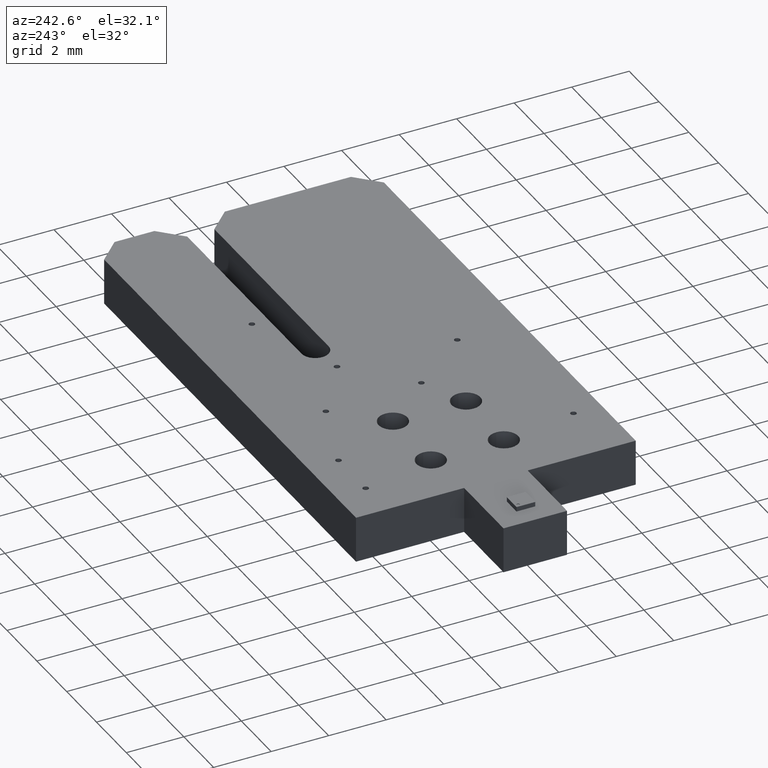
[diagram: clean part render]
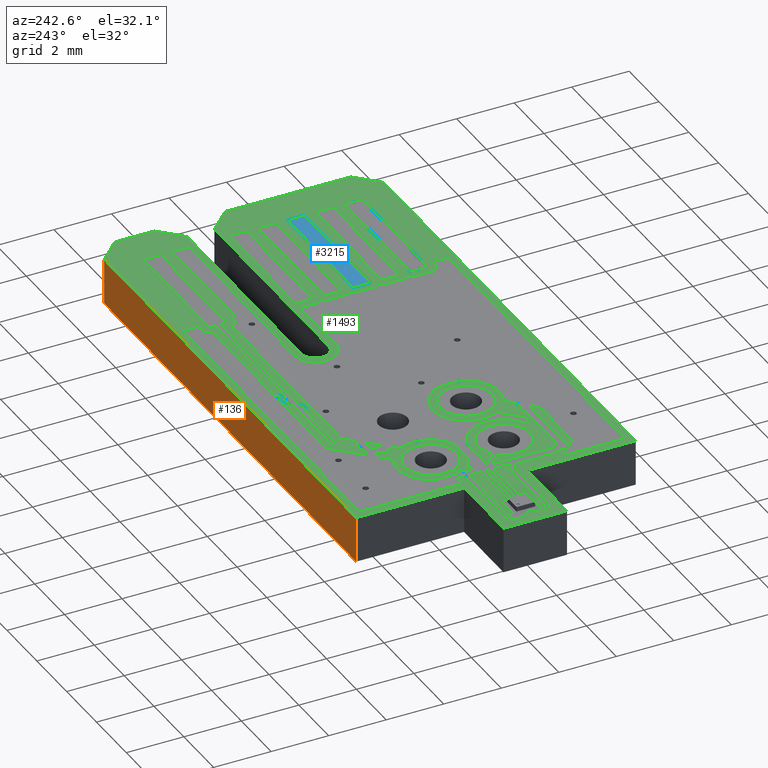
[diagram: same view with three faces highlighted in distinct colors, each labeled with its STEP entity id]
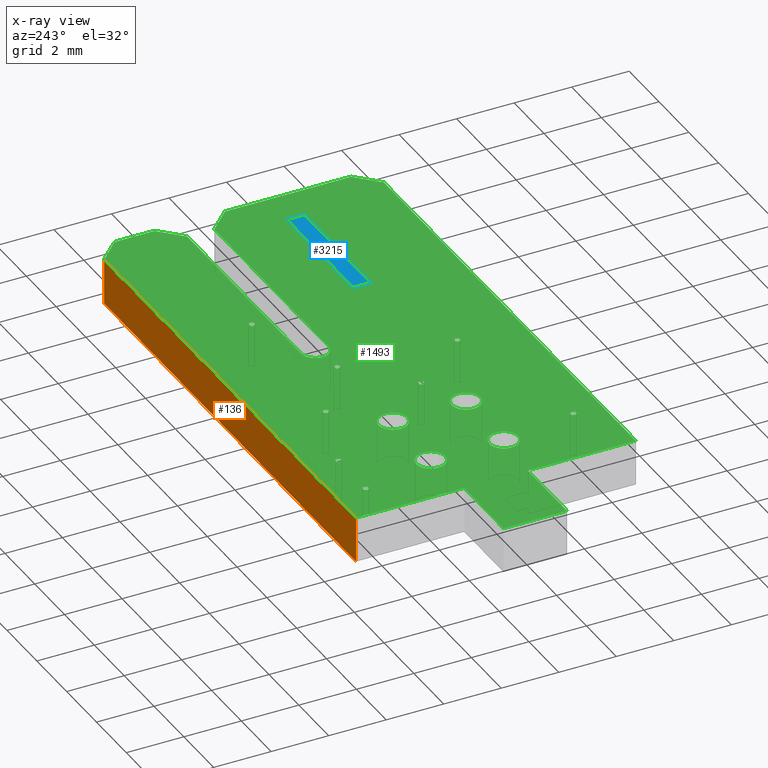
[diagram: x-ray of the same camera — body ghosted, the three highlighted faces saturated]
A machine part, auxiliary view with three faces highlighted in distinct colors.
The next image is the same camera in x-ray (body ghosted, the three faces saturated) — at least one of them is partly hidden behind the body in this view.
Their STEP definitions:

[orange] entity #136 — the highlighted planar face has unit normal (0, 1, 0).
#111 = VERTEX_POINT('',#112);
#112 = CARTESIAN_POINT('',(4.076708153416,4.864109728219,1.600025400051)
  );
#118 = EDGE_CURVE('',#119,#111,#121,.T.);
#119 = VERTEX_POINT('',#120);
#120 = CARTESIAN_POINT('',(4.076708153416,4.864109728219,0.));
#121 = LINE('',#122,#123);
#122 = CARTESIAN_POINT('',(4.076708153416,4.864109728219,0.));
#123 = VECTOR('',#124,1.);
#124 = DIRECTION('',(0.,0.,1.));
#136 = ADVANCED_FACE('',(#137),#162,.T.);
#137 = FACE_BOUND('',#138,.T.);
#138 = EDGE_LOOP('',(#139,#140,#148,#156));
#139 = ORIENTED_EDGE('',*,*,#118,.T.);
#140 = ORIENTED_EDGE('',*,*,#141,.T.);
#141 = EDGE_CURVE('',#111,#142,#144,.T.);
#142 = VERTEX_POINT('',#143);
#143 = CARTESIAN_POINT('',(20.975181438121,4.864109728219,1.600025400051
    ));
#144 = LINE('',#145,#146);
#145 = CARTESIAN_POINT('',(4.076708153416,4.864109728219,1.600025400051)
  );
#146 = VECTOR('',#147,1.);
#147 = DIRECTION('',(1.,0.,0.));
#148 = ORIENTED_EDGE('',*,*,#149,.F.);
#149 = EDGE_CURVE('',#150,#142,#152,.T.);
#150 = VERTEX_POINT('',#151);
#151 = CARTESIAN_POINT('',(20.975181438121,4.864109728219,0.));
#152 = LINE('',#153,#154);
#153 = CARTESIAN_POINT('',(20.975181438121,4.864109728219,0.));
#154 = VECTOR('',#155,1.);
#155 = DIRECTION('',(0.,0.,1.));
#156 = ORIENTED_EDGE('',*,*,#157,.F.);
#157 = EDGE_CURVE('',#119,#150,#158,.T.);
#158 = LINE('',#159,#160);
#159 = CARTESIAN_POINT('',(4.076708153416,4.864109728219,0.));
#160 = VECTOR('',#161,1.);
#161 = DIRECTION('',(1.,0.,0.));
#162 = PLANE('',#163);
#163 = AXIS2_PLACEMENT_3D('',#164,#165,#166);
#164 = CARTESIAN_POINT('',(4.076708153416,4.864109728219,0.));
#165 = DIRECTION('',(0.,1.,0.));
#166 = DIRECTION('',(1.,0.,0.));

[blue] entity #3215 — the highlighted planar face has unit normal (-0, -0, -1).
#3215 = ADVANCED_FACE('',(#3216),#3250,.T.);
#3216 = FACE_BOUND('',#3217,.T.);
#3217 = EDGE_LOOP('',(#3218,#3228,#3236,#3244));
#3218 = ORIENTED_EDGE('',*,*,#3219,.T.);
#3219 = EDGE_CURVE('',#3220,#3222,#3224,.T.);
#3220 = VERTEX_POINT('',#3221);
#3221 = CARTESIAN_POINT('',(20.408940817882,-1.196342392685,0.));
#3222 = VERTEX_POINT('',#3223);
#3223 = CARTESIAN_POINT('',(20.408940817882,-1.805943611887,0.));
#3224 = LINE('',#3225,#3226);
#3225 = CARTESIAN_POINT('',(20.408940817882,-1.196342392685,0.));
#3226 = VECTOR('',#3227,1.);
#3227 = DIRECTION('',(0.,-1.,0.));
#3228 = ORIENTED_EDGE('',*,*,#3229,.T.);
#3229 = EDGE_CURVE('',#3222,#3230,#3232,.T.);
#3230 = VERTEX_POINT('',#3231);
#3231 = CARTESIAN_POINT('',(15.963931927864,-1.805943611887,0.));
#3232 = LINE('',#3233,#3234);
#3233 = CARTESIAN_POINT('',(20.408940817882,-1.805943611887,0.));
#3234 = VECTOR('',#3235,1.);
#3235 = DIRECTION('',(-1.,9.990738395313E-17,0.));
#3236 = ORIENTED_EDGE('',*,*,#3237,.T.);
#3237 = EDGE_CURVE('',#3230,#3238,#3240,.T.);
#3238 = VERTEX_POINT('',#3239);
#3239 = CARTESIAN_POINT('',(15.963931927864,-1.196342392685,0.));
#3240 = LINE('',#3241,#3242);
#3241 = CARTESIAN_POINT('',(15.963931927864,-1.805943611887,0.));
#3242 = VECTOR('',#3243,1.);
#3243 = DIRECTION('',(0.,1.,0.));
#3244 = ORIENTED_EDGE('',*,*,#3245,.T.);
#3245 = EDGE_CURVE('',#3238,#3220,#3246,.T.);
#3246 = LINE('',#3247,#3248);
#3247 = CARTESIAN_POINT('',(15.963931927864,-1.196342392685,0.));
#3248 = VECTOR('',#3249,1.);
#3249 = DIRECTION('',(1.,-9.990738395313E-17,0.));
#3250 = PLANE('',#3251);
#3251 = AXIS2_PLACEMENT_3D('',#3252,#3253,#3254);
#3252 = CARTESIAN_POINT('',(18.186436372873,-1.501143002286,0.));
#3253 = DIRECTION('',(-0.,-0.,-1.));
#3254 = DIRECTION('',(-1.,0.,0.));

[green] entity #1493 — the highlighted planar face has unit normal (-0, -0, -1).
#70 = VERTEX_POINT('',#71);
#71 = CARTESIAN_POINT('',(4.064008128016,1.104902209804,1.600025400051)
  );
#77 = EDGE_CURVE('',#70,#78,#80,.T.);
#78 = VERTEX_POINT('',#79);
#79 = CARTESIAN_POINT('',(4.076708153416,1.117602235204,1.600025400051)
  );
#80 = CIRCLE('',#81,1.270002540005E-02);
#81 = AXIS2_PLACEMENT_3D('',#82,#83,#84);
#82 = CARTESIAN_POINT('',(4.064008128016,1.117602235204,1.600025400051)
  );
#83 = DIRECTION('',(0.,0.,1.));
#84 = DIRECTION('',(8.789254920238E-15,-1.,0.));
#110 = EDGE_CURVE('',#78,#111,#113,.T.);
#111 = VERTEX_POINT('',#112);
#112 = CARTESIAN_POINT('',(4.076708153416,4.864109728219,1.600025400051)
  );
#113 = LINE('',#114,#115);
#114 = CARTESIAN_POINT('',(4.076708153416,1.117602235204,1.600025400051)
  );
#115 = VECTOR('',#116,1.);
#116 = DIRECTION('',(0.,1.,0.));
#141 = EDGE_CURVE('',#111,#142,#144,.T.);
#142 = VERTEX_POINT('',#143);
#143 = CARTESIAN_POINT('',(20.975181438121,4.864109728219,1.600025400051
    ));
#144 = LINE('',#145,#146);
#145 = CARTESIAN_POINT('',(4.076708153416,4.864109728219,1.600025400051)
  );
#146 = VECTOR('',#147,1.);
#147 = DIRECTION('',(1.,0.,0.));
#172 = EDGE_CURVE('',#142,#173,#175,.T.);
#173 = VERTEX_POINT('',#174);
#174 = CARTESIAN_POINT('',(21.729743459487,4.109547706853,1.600025400051
    ));
#175 = LINE('',#176,#177);
#176 = CARTESIAN_POINT('',(20.975181438121,4.864109728219,1.600025400051
    ));
#177 = VECTOR('',#178,1.);
#178 = DIRECTION('',(0.707106781187,-0.707106781187,0.));
#203 = EDGE_CURVE('',#173,#204,#206,.T.);
#204 = VERTEX_POINT('',#205);
#205 = CARTESIAN_POINT('',(21.729743459487,2.725605963454,1.600025400051
    ));
#206 = LINE('',#207,#208);
#207 = CARTESIAN_POINT('',(21.729743459487,4.109547706853,1.600025400051
    ));
#208 = VECTOR('',#209,1.);
#209 = DIRECTION('',(0.,-1.,0.));
#234 = EDGE_CURVE('',#204,#235,#237,.T.);
#235 = VERTEX_POINT('',#236);
#236 = CARTESIAN_POINT('',(20.975181438121,1.971043942088,1.600025400051
    ));
#237 = LINE('',#238,#239);
#238 = CARTESIAN_POINT('',(21.729743459487,2.725605963454,1.600025400051
    ));
#239 = VECTOR('',#240,1.);
#240 = DIRECTION('',(-0.707106781187,-0.707106781187,0.));
#265 = EDGE_CURVE('',#235,#266,#268,.T.);
#266 = VERTEX_POINT('',#267);
#267 = CARTESIAN_POINT('',(13.309626619253,1.971043942088,1.600025400051
    ));
#268 = LINE('',#269,#270);
#269 = CARTESIAN_POINT('',(20.975181438121,1.971043942088,1.600025400051
    ));
#270 = VECTOR('',#271,1.);
#271 = DIRECTION('',(-1.,1.737992436335E-16,0.));
#296 = EDGE_CURVE('',#266,#297,#299,.T.);
#297 = VERTEX_POINT('',#298);
#298 = CARTESIAN_POINT('',(13.309626619253,1.031242062484,1.600025400051
    ));
#299 = CIRCLE('',#300,0.469900939802);
#300 = AXIS2_PLACEMENT_3D('',#301,#302,#303);
#301 = CARTESIAN_POINT('',(13.309626619253,1.501143002286,1.600025400051
    ));
#302 = DIRECTION('',(0.,0.,1.));
#303 = DIRECTION('',(-1.110223024625E-16,1.,0.));
#329 = EDGE_CURVE('',#297,#330,#332,.T.);
#330 = VERTEX_POINT('',#331);
#331 = CARTESIAN_POINT('',(20.975181438121,1.031242062484,1.600025400051
    ));
#332 = LINE('',#333,#334);
#333 = CARTESIAN_POINT('',(13.309626619253,1.031242062484,1.600025400051
    ));
#334 = VECTOR('',#335,1.);
#335 = DIRECTION('',(1.,-8.689962181674E-17,0.));
#360 = EDGE_CURVE('',#330,#361,#363,.T.);
#361 = VERTEX_POINT('',#362);
#362 = CARTESIAN_POINT('',(21.729743459487,0.276680041118,1.600025400051
    ));
#363 = LINE('',#364,#365);
#364 = CARTESIAN_POINT('',(20.975181438121,1.031242062484,1.600025400051
    ));
#365 = VECTOR('',#366,1.);
#366 = DIRECTION('',(0.707106781187,-0.707106781187,0.));
#391 = EDGE_CURVE('',#361,#392,#394,.T.);
#392 = VERTEX_POINT('',#393);
#393 = CARTESIAN_POINT('',(21.729743459487,-4.109547706853,
    1.600025400051));
#394 = LINE('',#395,#396);
#395 = CARTESIAN_POINT('',(21.729743459487,0.276680041118,1.600025400051
    ));
#396 = VECTOR('',#397,1.);
#397 = DIRECTION('',(0.,-1.,0.));
#422 = EDGE_CURVE('',#392,#423,#425,.T.);
#423 = VERTEX_POINT('',#424);
#424 = CARTESIAN_POINT('',(20.975181438121,-4.864109728219,
    1.600025400051));
#425 = LINE('',#426,#427);
#426 = CARTESIAN_POINT('',(21.729743459487,-4.109547706853,
    1.600025400051));
#427 = VECTOR('',#428,1.);
#428 = DIRECTION('',(-0.707106781187,-0.707106781187,0.));
#453 = EDGE_CURVE('',#423,#454,#456,.T.);
#454 = VERTEX_POINT('',#455);
#455 = CARTESIAN_POINT('',(4.076708153416,-4.864109728219,1.600025400051
    ));
#456 = LINE('',#457,#458);
#457 = CARTESIAN_POINT('',(20.975181438121,-4.864109728219,
    1.600025400051));
#458 = VECTOR('',#459,1.);
#459 = DIRECTION('',(-1.,0.,0.));
#484 = EDGE_CURVE('',#454,#485,#487,.T.);
#485 = VERTEX_POINT('',#486);
#486 = CARTESIAN_POINT('',(4.076708153416,-1.117602235204,1.600025400051
    ));
#487 = LINE('',#488,#489);
#488 = CARTESIAN_POINT('',(4.076708153416,-4.864109728219,1.600025400051
    ));
#489 = VECTOR('',#490,1.);
#490 = DIRECTION('',(0.,1.,0.));
#515 = EDGE_CURVE('',#485,#516,#518,.T.);
#516 = VERTEX_POINT('',#517);
#517 = CARTESIAN_POINT('',(4.064008128016,-1.104902209804,1.600025400051
    ));
#518 = CIRCLE('',#519,1.270002540005E-02);
#519 = AXIS2_PLACEMENT_3D('',#520,#521,#522);
#520 = CARTESIAN_POINT('',(4.064008128016,-1.117602235204,1.600025400051
    ));
#521 = DIRECTION('',(0.,-0.,1.));
#522 = DIRECTION('',(1.,-8.692669701335E-15,-0.));
#548 = EDGE_CURVE('',#516,#549,#551,.T.);
#549 = VERTEX_POINT('',#550);
#550 = CARTESIAN_POINT('',(1.435102870206,-1.104902209804,1.600025400051
    ));
#551 = LINE('',#552,#553);
#552 = CARTESIAN_POINT('',(4.064008128016,-1.104902209804,1.600025400051
    ));
#553 = VECTOR('',#554,1.);
#554 = DIRECTION('',(-1.,0.,0.));
#579 = EDGE_CURVE('',#549,#580,#582,.T.);
#580 = VERTEX_POINT('',#581);
#581 = CARTESIAN_POINT('',(1.435102870206,1.104902209804,1.600025400051)
  );
#582 = LINE('',#583,#584);
#583 = CARTESIAN_POINT('',(1.435102870206,-1.104902209804,1.600025400051
    ));
#584 = VECTOR('',#585,1.);
#585 = DIRECTION('',(0.,1.,0.));
#610 = EDGE_CURVE('',#580,#70,#611,.T.);
#611 = LINE('',#612,#613);
#612 = CARTESIAN_POINT('',(1.435102870206,1.104902209804,1.600025400051)
  );
#613 = VECTOR('',#614,1.);
#614 = DIRECTION('',(1.,0.,0.));
#634 = VERTEX_POINT('',#635);
#635 = CARTESIAN_POINT('',(5.562611125222,3.810007620015,1.600025400051)
  );
#641 = EDGE_CURVE('',#634,#642,#644,.T.);
#642 = VERTEX_POINT('',#643);
#643 = CARTESIAN_POINT('',(5.359410718821,3.810007620015,1.600025400051)
  );
#644 = CIRCLE('',#645,0.1016002032);
#645 = AXIS2_PLACEMENT_3D('',#646,#647,#648);
#646 = CARTESIAN_POINT('',(5.461010922022,3.810007620015,1.600025400051)
  );
#647 = DIRECTION('',(0.,0.,1.));
#648 = DIRECTION('',(1.,1.110223024625E-16,-0.));
#674 = EDGE_CURVE('',#642,#634,#675,.T.);
#675 = CIRCLE('',#676,0.1016002032);
#676 = AXIS2_PLACEMENT_3D('',#677,#678,#679);
#677 = CARTESIAN_POINT('',(5.461010922022,3.810007620015,1.600025400051)
  );
#678 = DIRECTION('',(0.,0.,1.));
#679 = DIRECTION('',(-1.,-1.110223024625E-16,0.));
#700 = VERTEX_POINT('',#701);
#701 = CARTESIAN_POINT('',(6.494411988824,-1.270002540005,1.600025400051
    ));
#707 = EDGE_CURVE('',#700,#708,#710,.T.);
#708 = VERTEX_POINT('',#709);
#709 = CARTESIAN_POINT('',(5.494411988824,-1.270002540005,1.600025400051
    ));
#710 = CIRCLE('',#711,0.5);
#711 = AXIS2_PLACEMENT_3D('',#712,#713,#714);
#712 = CARTESIAN_POINT('',(5.994411988824,-1.270002540005,1.600025400051
    ));
#713 = DIRECTION('',(0.,0.,1.));
#714 = DIRECTION('',(1.,1.110223024625E-16,-0.));
#740 = EDGE_CURVE('',#708,#700,#741,.T.);
#741 = CIRCLE('',#742,0.5);
#742 = AXIS2_PLACEMENT_3D('',#743,#744,#745);
#743 = CARTESIAN_POINT('',(5.994411988824,-1.270002540005,1.600025400051
    ));
#744 = DIRECTION('',(0.,0.,1.));
#745 = DIRECTION('',(-1.,-1.110223024625E-16,0.));
#766 = VERTEX_POINT('',#767);
#767 = CARTESIAN_POINT('',(6.494411988824,1.270002540005,1.600025400051)
  );
#773 = EDGE_CURVE('',#766,#774,#776,.T.);
#774 = VERTEX_POINT('',#775);
#775 = CARTESIAN_POINT('',(5.494411988824,1.270002540005,1.600025400051)
  );
#776 = CIRCLE('',#777,0.5);
#777 = AXIS2_PLACEMENT_3D('',#778,#779,#780);
#778 = CARTESIAN_POINT('',(5.994411988824,1.270002540005,1.600025400051)
  );
#779 = DIRECTION('',(0.,0.,1.));
#780 = DIRECTION('',(1.,1.110223024625E-16,-0.));
#806 = EDGE_CURVE('',#774,#766,#807,.T.);
#807 = CIRCLE('',#808,0.5);
#808 = AXIS2_PLACEMENT_3D('',#809,#810,#811);
#809 = CARTESIAN_POINT('',(5.994411988824,1.270002540005,1.600025400051)
  );
#810 = DIRECTION('',(0.,0.,1.));
#811 = DIRECTION('',(-1.,-1.110223024625E-16,0.));
#832 = VERTEX_POINT('',#833);
#833 = CARTESIAN_POINT('',(6.477012954026,-3.886207772416,1.600025400051
    ));
#839 = EDGE_CURVE('',#832,#840,#842,.T.);
#840 = VERTEX_POINT('',#841);
#841 = CARTESIAN_POINT('',(6.273812547625,-3.886207772416,1.600025400051
    ));
#842 = CIRCLE('',#843,0.1016002032);
#843 = AXIS2_PLACEMENT_3D('',#844,#845,#846);
#844 = CARTESIAN_POINT('',(6.375412750826,-3.886207772416,1.600025400051
    ));
#845 = DIRECTION('',(0.,0.,1.));
#846 = DIRECTION('',(1.,1.110223024625E-16,-0.));
#872 = EDGE_CURVE('',#840,#832,#873,.T.);
#873 = CIRCLE('',#874,0.1016002032);
#874 = AXIS2_PLACEMENT_3D('',#875,#876,#877);
#875 = CARTESIAN_POINT('',(6.375412750826,-3.886207772416,1.600025400051
    ));
#876 = DIRECTION('',(0.,0.,1.));
#877 = DIRECTION('',(-1.,-1.110223024625E-16,0.));
#898 = VERTEX_POINT('',#899);
#899 = CARTESIAN_POINT('',(7.388516637033,3.810007620015,1.600025400051)
  );
#905 = EDGE_CURVE('',#898,#906,#908,.T.);
#906 = VERTEX_POINT('',#907);
#907 = CARTESIAN_POINT('',(7.185316230632,3.810007620015,1.600025400051)
  );
#908 = CIRCLE('',#909,0.1016002032);
#909 = AXIS2_PLACEMENT_3D('',#910,#911,#912);
#910 = CARTESIAN_POINT('',(7.286916433833,3.810007620015,1.600025400051)
  );
#911 = DIRECTION('',(0.,0.,1.));
#912 = DIRECTION('',(1.,1.110223024625E-16,-0.));
#938 = EDGE_CURVE('',#906,#898,#939,.T.);
#939 = CIRCLE('',#940,0.1016002032);
#940 = AXIS2_PLACEMENT_3D('',#941,#942,#943);
#941 = CARTESIAN_POINT('',(7.286916433833,3.810007620015,1.600025400051)
  );
#942 = DIRECTION('',(0.,0.,1.));
#943 = DIRECTION('',(-1.,-1.110223024625E-16,0.));
#964 = VERTEX_POINT('',#965);
#965 = CARTESIAN_POINT('',(9.034417068834,-1.270002540005,1.600025400051
    ));
#971 = EDGE_CURVE('',#964,#972,#974,.T.);
#972 = VERTEX_POINT('',#973);
#973 = CARTESIAN_POINT('',(8.034417068834,-1.270002540005,1.600025400051
    ));
#974 = CIRCLE('',#975,0.5);
#975 = AXIS2_PLACEMENT_3D('',#976,#977,#978);
#976 = CARTESIAN_POINT('',(8.534417068834,-1.270002540005,1.600025400051
    ));
#977 = DIRECTION('',(0.,0.,1.));
#978 = DIRECTION('',(1.,1.110223024625E-16,-0.));
#1004 = EDGE_CURVE('',#972,#964,#1005,.T.);
#1005 = CIRCLE('',#1006,0.5);
#1006 = AXIS2_PLACEMENT_3D('',#1007,#1008,#1009);
#1007 = CARTESIAN_POINT('',(8.534417068834,-1.270002540005,
    1.600025400051));
#1008 = DIRECTION('',(0.,0.,1.));
#1009 = DIRECTION('',(-1.,-1.110223024625E-16,0.));
#1030 = VERTEX_POINT('',#1031);
#1031 = CARTESIAN_POINT('',(9.034417068834,1.270002540005,1.600025400051
    ));
#1037 = EDGE_CURVE('',#1030,#1038,#1040,.T.);
#1038 = VERTEX_POINT('',#1039);
#1039 = CARTESIAN_POINT('',(8.034417068834,1.270002540005,1.600025400051
    ));
#1040 = CIRCLE('',#1041,0.5);
#1041 = AXIS2_PLACEMENT_3D('',#1042,#1043,#1044);
#1042 = CARTESIAN_POINT('',(8.534417068834,1.270002540005,1.600025400051
    ));
#1043 = DIRECTION('',(0.,0.,1.));
#1044 = DIRECTION('',(1.,1.110223024625E-16,-0.));
#1070 = EDGE_CURVE('',#1038,#1030,#1071,.T.);
#1071 = CIRCLE('',#1072,0.5);
#1072 = AXIS2_PLACEMENT_3D('',#1073,#1074,#1075);
#1073 = CARTESIAN_POINT('',(8.534417068834,1.270002540005,1.600025400051
    ));
#1074 = DIRECTION('',(0.,0.,1.));
#1075 = DIRECTION('',(-1.,-1.110223024625E-16,0.));
#1096 = VERTEX_POINT('',#1097);
#1097 = CARTESIAN_POINT('',(10.096898653797,2.844805689611,
    1.600025400051));
#1103 = EDGE_CURVE('',#1096,#1104,#1106,.T.);
#1104 = VERTEX_POINT('',#1105);
#1105 = CARTESIAN_POINT('',(9.893698247396,2.844805689611,1.600025400051
    ));
#1106 = CIRCLE('',#1107,0.1016002032);
#1107 = AXIS2_PLACEMENT_3D('',#1108,#1109,#1110);
#1108 = CARTESIAN_POINT('',(9.995298450597,2.844805689611,1.600025400051
    ));
#1109 = DIRECTION('',(0.,0.,1.));
#1110 = DIRECTION('',(1.,1.110223024625E-16,-0.));
#1136 = EDGE_CURVE('',#1104,#1096,#1137,.T.);
#1137 = CIRCLE('',#1138,0.1016002032);
#1138 = AXIS2_PLACEMENT_3D('',#1139,#1140,#1141);
#1139 = CARTESIAN_POINT('',(9.995298450597,2.844805689611,1.600025400051
    ));
#1140 = DIRECTION('',(0.,0.,1.));
#1141 = DIRECTION('',(-1.,-1.110223024625E-16,0.));
#1162 = VERTEX_POINT('',#1163);
#1163 = CARTESIAN_POINT('',(10.210820421641,-0.533401066802,
    1.600025400051));
#1169 = EDGE_CURVE('',#1162,#1170,#1172,.T.);
#1170 = VERTEX_POINT('',#1171);
#1171 = CARTESIAN_POINT('',(10.00762001524,-0.533401066802,
    1.600025400051));
#1172 = CIRCLE('',#1173,0.1016002032);
#1173 = AXIS2_PLACEMENT_3D('',#1174,#1175,#1176);
#1174 = CARTESIAN_POINT('',(10.10922021844,-0.533401066802,
    1.600025400051));
#1175 = DIRECTION('',(0.,0.,1.));
#1176 = DIRECTION('',(1.,1.110223024625E-16,-0.));
#1202 = EDGE_CURVE('',#1170,#1162,#1203,.T.);
#1203 = CIRCLE('',#1204,0.1016002032);
#1204 = AXIS2_PLACEMENT_3D('',#1205,#1206,#1207);
#1205 = CARTESIAN_POINT('',(10.10922021844,-0.533401066802,
    1.600025400051));
#1206 = DIRECTION('',(0.,0.,1.));
#1207 = DIRECTION('',(-1.,-1.110223024625E-16,0.));
#1228 = VERTEX_POINT('',#1229);
#1229 = CARTESIAN_POINT('',(11.912623825248,-2.667005334011,
    1.600025400051));
#1235 = EDGE_CURVE('',#1228,#1236,#1238,.T.);
#1236 = VERTEX_POINT('',#1237);
#1237 = CARTESIAN_POINT('',(11.709423418847,-2.667005334011,
    1.600025400051));
#1238 = CIRCLE('',#1239,0.1016002032);
#1239 = AXIS2_PLACEMENT_3D('',#1240,#1241,#1242);
#1240 = CARTESIAN_POINT('',(11.811023622047,-2.667005334011,
    1.600025400051));
#1241 = DIRECTION('',(0.,0.,1.));
#1242 = DIRECTION('',(1.,1.110223024625E-16,-0.));
#1268 = EDGE_CURVE('',#1236,#1228,#1269,.T.);
#1269 = CIRCLE('',#1270,0.1016002032);
#1270 = AXIS2_PLACEMENT_3D('',#1271,#1272,#1273);
#1271 = CARTESIAN_POINT('',(11.811023622047,-2.667005334011,
    1.600025400051));
#1272 = DIRECTION('',(0.,0.,1.));
#1273 = DIRECTION('',(-1.,-1.110223024625E-16,0.));
#1294 = VERTEX_POINT('',#1295);
#1295 = CARTESIAN_POINT('',(12.242824485649,1.346202692405,
    1.600025400051));
#1301 = EDGE_CURVE('',#1294,#1302,#1304,.T.);
#1302 = VERTEX_POINT('',#1303);
#1303 = CARTESIAN_POINT('',(12.039624079248,1.346202692405,
    1.600025400051));
#1304 = CIRCLE('',#1305,0.1016002032);
#1305 = AXIS2_PLACEMENT_3D('',#1306,#1307,#1308);
#1306 = CARTESIAN_POINT('',(12.141224282449,1.346202692405,
    1.600025400051));
#1307 = DIRECTION('',(0.,0.,1.));
#1308 = DIRECTION('',(1.,1.110223024625E-16,-0.));
#1334 = EDGE_CURVE('',#1302,#1294,#1335,.T.);
#1335 = CIRCLE('',#1336,0.1016002032);
#1336 = AXIS2_PLACEMENT_3D('',#1337,#1338,#1339);
#1337 = CARTESIAN_POINT('',(12.141224282449,1.346202692405,
    1.600025400051));
#1338 = DIRECTION('',(0.,0.,1.));
#1339 = DIRECTION('',(-1.,-1.110223024625E-16,0.));
#1360 = VERTEX_POINT('',#1361);
#1361 = CARTESIAN_POINT('',(15.646431292863,2.54000508001,1.600025400051
    ));
#1367 = EDGE_CURVE('',#1360,#1368,#1370,.T.);
#1368 = VERTEX_POINT('',#1369);
#1369 = CARTESIAN_POINT('',(15.443230886462,2.54000508001,1.600025400051
    ));
#1370 = CIRCLE('',#1371,0.1016002032);
#1371 = AXIS2_PLACEMENT_3D('',#1372,#1373,#1374);
#1372 = CARTESIAN_POINT('',(15.544831089662,2.54000508001,1.600025400051
    ));
#1373 = DIRECTION('',(0.,0.,1.));
#1374 = DIRECTION('',(1.,1.110223024625E-16,-0.));
#1400 = EDGE_CURVE('',#1368,#1360,#1401,.T.);
#1401 = CIRCLE('',#1402,0.1016002032);
#1402 = AXIS2_PLACEMENT_3D('',#1403,#1404,#1405);
#1403 = CARTESIAN_POINT('',(15.544831089662,2.54000508001,1.600025400051
    ));
#1404 = DIRECTION('',(0.,0.,1.));
#1405 = DIRECTION('',(-1.,-1.110223024625E-16,0.));
#1493 = ADVANCED_FACE('',(#1494,#1514,#1518,#1522,#1526,#1530,#1534,
    #1538,#1542,#1546,#1550,#1554,#1558),#1562,.F.);
#1494 = FACE_BOUND('',#1495,.F.);
#1495 = EDGE_LOOP('',(#1496,#1497,#1498,#1499,#1500,#1501,#1502,#1503,
    #1504,#1505,#1506,#1507,#1508,#1509,#1510,#1511,#1512,#1513));
#1496 = ORIENTED_EDGE('',*,*,#77,.T.);
#1497 = ORIENTED_EDGE('',*,*,#110,.T.);
#1498 = ORIENTED_EDGE('',*,*,#141,.T.);
#1499 = ORIENTED_EDGE('',*,*,#172,.T.);
#1500 = ORIENTED_EDGE('',*,*,#203,.T.);
#1501 = ORIENTED_EDGE('',*,*,#234,.T.);
#1502 = ORIENTED_EDGE('',*,*,#265,.T.);
#1503 = ORIENTED_EDGE('',*,*,#296,.T.);
#1504 = ORIENTED_EDGE('',*,*,#329,.T.);
#1505 = ORIENTED_EDGE('',*,*,#360,.T.);
#1506 = ORIENTED_EDGE('',*,*,#391,.T.);
#1507 = ORIENTED_EDGE('',*,*,#422,.T.);
#1508 = ORIENTED_EDGE('',*,*,#453,.T.);
#1509 = ORIENTED_EDGE('',*,*,#484,.T.);
#1510 = ORIENTED_EDGE('',*,*,#515,.T.);
#1511 = ORIENTED_EDGE('',*,*,#548,.T.);
#1512 = ORIENTED_EDGE('',*,*,#579,.T.);
#1513 = ORIENTED_EDGE('',*,*,#610,.T.);
#1514 = FACE_BOUND('',#1515,.F.);
#1515 = EDGE_LOOP('',(#1516,#1517));
#1516 = ORIENTED_EDGE('',*,*,#641,.T.);
#1517 = ORIENTED_EDGE('',*,*,#674,.T.);
#1518 = FACE_BOUND('',#1519,.F.);
#1519 = EDGE_LOOP('',(#1520,#1521));
#1520 = ORIENTED_EDGE('',*,*,#707,.T.);
#1521 = ORIENTED_EDGE('',*,*,#740,.T.);
#1522 = FACE_BOUND('',#1523,.F.);
#1523 = EDGE_LOOP('',(#1524,#1525));
#1524 = ORIENTED_EDGE('',*,*,#773,.T.);
#1525 = ORIENTED_EDGE('',*,*,#806,.T.);
#1526 = FACE_BOUND('',#1527,.F.);
#1527 = EDGE_LOOP('',(#1528,#1529));
#1528 = ORIENTED_EDGE('',*,*,#839,.T.);
#1529 = ORIENTED_EDGE('',*,*,#872,.T.);
#1530 = FACE_BOUND('',#1531,.F.);
#1531 = EDGE_LOOP('',(#1532,#1533));
#1532 = ORIENTED_EDGE('',*,*,#905,.T.);
#1533 = ORIENTED_EDGE('',*,*,#938,.T.);
#1534 = FACE_BOUND('',#1535,.F.);
#1535 = EDGE_LOOP('',(#1536,#1537));
#1536 = ORIENTED_EDGE('',*,*,#971,.T.);
#1537 = ORIENTED_EDGE('',*,*,#1004,.T.);
#1538 = FACE_BOUND('',#1539,.F.);
#1539 = EDGE_LOOP('',(#1540,#1541));
#1540 = ORIENTED_EDGE('',*,*,#1037,.T.);
#1541 = ORIENTED_EDGE('',*,*,#1070,.T.);
#1542 = FACE_BOUND('',#1543,.F.);
#1543 = EDGE_LOOP('',(#1544,#1545));
#1544 = ORIENTED_EDGE('',*,*,#1103,.T.);
#1545 = ORIENTED_EDGE('',*,*,#1136,.T.);
#1546 = FACE_BOUND('',#1547,.F.);
#1547 = EDGE_LOOP('',(#1548,#1549));
#1548 = ORIENTED_EDGE('',*,*,#1169,.T.);
#1549 = ORIENTED_EDGE('',*,*,#1202,.T.);
#1550 = FACE_BOUND('',#1551,.F.);
#1551 = EDGE_LOOP('',(#1552,#1553));
#1552 = ORIENTED_EDGE('',*,*,#1235,.T.);
#1553 = ORIENTED_EDGE('',*,*,#1268,.T.);
#1554 = FACE_BOUND('',#1555,.F.);
#1555 = EDGE_LOOP('',(#1556,#1557));
#1556 = ORIENTED_EDGE('',*,*,#1301,.T.);
#1557 = ORIENTED_EDGE('',*,*,#1334,.T.);
#1558 = FACE_BOUND('',#1559,.F.);
#1559 = EDGE_LOOP('',(#1560,#1561));
#1560 = ORIENTED_EDGE('',*,*,#1367,.T.);
#1561 = ORIENTED_EDGE('',*,*,#1400,.T.);
#1562 = PLANE('',#1563);
#1563 = AXIS2_PLACEMENT_3D('',#1564,#1565,#1566);
#1564 = CARTESIAN_POINT('',(12.826647516355,0.326264867474,
    1.600025400051));
#1565 = DIRECTION('',(-0.,-0.,-1.));
#1566 = DIRECTION('',(-1.,0.,0.));